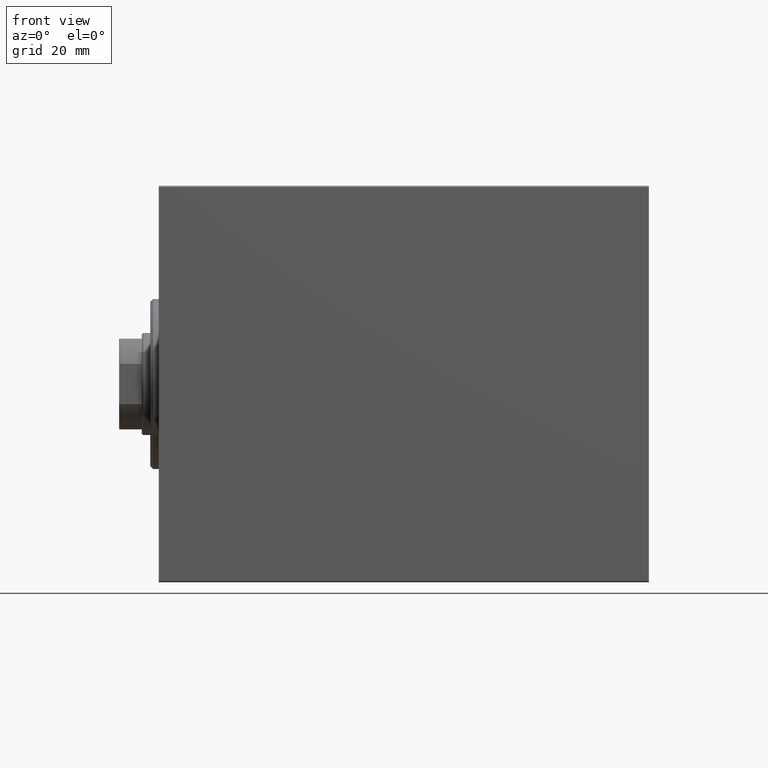
[diagram: clean part render]
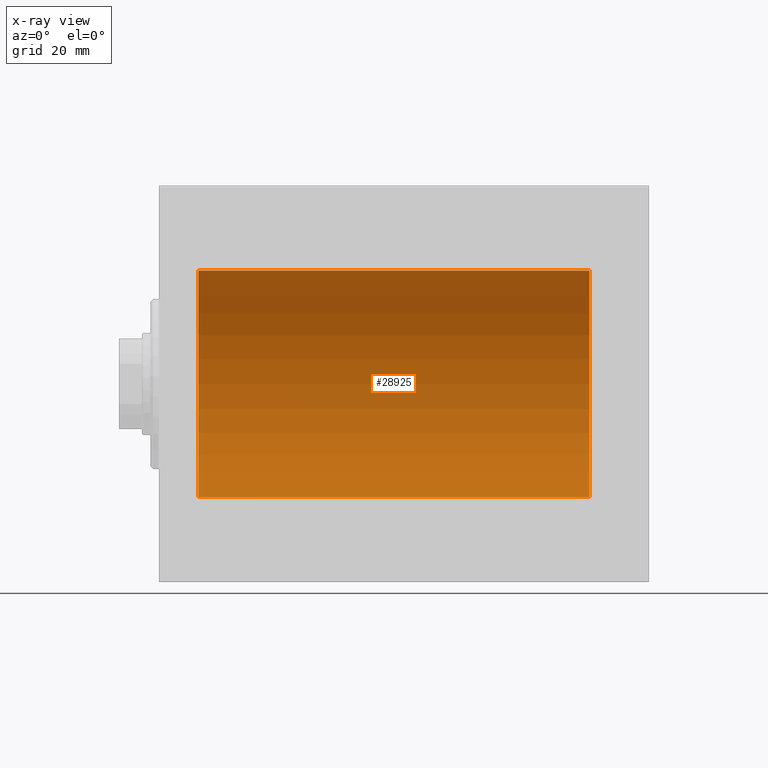
[diagram: x-ray — body ghosted, one internal face saturated and labeled with its STEP entity id]
A machine part, front view, then the same camera in x-ray: the body is ghosted and one INTERNAL B-rep face — a face not visible from any outside direction — is saturated and labeled: STEP entity #28925.
In plain terms, the highlighted cylindrical surface (partial cylindrical patch) has radius 40 mm, axis along (-1, -0, -0).
Its self-contained STEP definition (entity closure, byte-faithful):
#705 = CARTESIAN_POINT ( 'NONE',  ( 152.0000000000000000, 4.898587196589413026E-15, -40.00000000000000000 ) ) ;
#906 = CARTESIAN_POINT ( 'NONE',  ( 36.96538297760252334, 2.847223932150720671, -39.89860891179020541 ) ) ;
#1119 = CARTESIAN_POINT ( 'NONE',  ( 38.38516937969400544, 1.830069308885378776, -39.95844440547435283 ) ) ;
#1143 = CARTESIAN_POINT ( 'NONE',  ( 152.0000000000000000, 0.000000000000000000, 40.00000000000000000 ) ) ;
#1173 = CARTESIAN_POINT ( 'NONE',  ( 149.3851693796940481, 1.830069308885375223, -39.95844440547435994 ) ) ;
#1667 = DIRECTION ( 'NONE',  ( -1.000000000000000000, -0.000000000000000000, -0.000000000000000000 ) ) ;
#2678 = CARTESIAN_POINT ( 'NONE',  ( 32.99999999999999289, 8.398598542115384856E-15, -40.00000000000000000 ) ) ;
#2945 = VERTEX_POINT ( 'NONE', #12619 ) ;
#3200 = CARTESIAN_POINT ( 'NONE',  ( 148.8293181958946150, 2.385749008316984998, -39.92893738690724348 ) ) ;
#4601 = CARTESIAN_POINT ( 'NONE',  ( 152.0000000000000000, 4.898587196589413026E-15, -40.00000000000000000 ) ) ;
#4896 = CARTESIAN_POINT ( 'NONE',  ( 37.32869256112343237, 2.696891635062812487, -39.90905226542624717 ) ) ;
#4949 = CARTESIAN_POINT ( 'NONE',  ( 149.8469143336090212, 0.9663207501652061326, -39.98873943115997065 ) ) ;
#5401 = B_SPLINE_CURVE_WITH_KNOTS ( 'NONE', 3,
 ( #27669, #18062, #18277, #28096, #28535, #42130, #21629, #10944, #34798, #41252, #25196, #41474, #21410, #17845, #24327, #38793, #24537, #35451, #41689, #7806, #906, #4896, #35016, #37920, #20971, #11160, #1119, #14500, #14711, #28313, #38576, #8029, #29409, #28750 ),
 .UNSPECIFIED., .F., .F.,
 ( 4, 2, 2, 2, 2, 2, 2, 2, 2, 2, 2, 2, 2, 2, 2, 2, 4 ),
 ( 3.904922793221654316E-19, 0.0005864162728940700573, 0.001172832545788139681, 0.001759248818682208762, 0.002345665091576278061, 0.002932081364470347576, 0.003518497637364417091, 0.004104913910258486606, 0.004691330183152556121, 0.005277746456046625637, 0.005864162728940695152, 0.006450579001834764667, 0.007036995274728834182, 0.007623411547622903697, 0.008209827820516973212, 0.008796244093411044462, 0.009382660366305113978 ),
 .UNSPECIFIED. ) ;
#5502 = CARTESIAN_POINT ( 'NONE',  ( 152.0000000000000000, 0.000000000000000000, 40.00000000000000000 ) ) ;
#6546 = CARTESIAN_POINT ( 'NONE',  ( 147.9653829776025589, 2.847223932150704240, -39.89860891179019120 ) ) ;
#6772 = CARTESIAN_POINT ( 'NONE',  ( 145.6709769446328266, 2.696641662727008448, -39.90906847305313221 ) ) ;
#7208 = CARTESIAN_POINT ( 'NONE',  ( 144.7407048734210093, 1.983397227149396036, -39.95103655448513535 ) ) ;
#7806 = CARTESIAN_POINT ( 'NONE',  ( 36.77833358861975199, 2.903909245874810363, -39.89447063612582411 ) ) ;
#8029 = CARTESIAN_POINT ( 'NONE',  ( 38.98037412309665228, 0.3947312521144721309, -39.99851454786933402 ) ) ;
#8288 = EDGE_CURVE ( 'NONE', #37083, #2945, #11307, .T. ) ;
#9115 = AXIS2_PLACEMENT_3D ( 'NONE', #29331, #11956, #15721 ) ;
#9702 = EDGE_CURVE ( 'NONE', #17042, #16889, #35252, .T. ) ;
#10120 = CARTESIAN_POINT ( 'NONE',  ( 146.0319915523671455, 2.846249845702965242, -39.89867772821342129 ) ) ;
#10381 = CARTESIAN_POINT ( 'NONE',  ( 144.0000000000000284, 2.642090954555614270E-16, -40.00000000000000000 ) ) ;
#10559 = CARTESIAN_POINT ( 'NONE',  ( 144.0000000000000568, 0.1982918730505173199, -40.00000000000000000 ) ) ;
#10944 = CARTESIAN_POINT ( 'NONE',  ( 33.61400897252563880, 1.829066045078060476, -39.95849278436324425 ) ) ;
#11160 = CARTESIAN_POINT ( 'NONE',  ( 38.26098393863168923, 1.981711254113870613, -39.95112616827061913 ) ) ;
#11307 = LINE ( 'NONE', #4601, #19501 ) ;
#11956 = DIRECTION ( 'NONE',  ( -1.000000000000000000, -0.000000000000000000, -0.000000000000000000 ) ) ;
#12190 = AXIS2_PLACEMENT_3D ( 'NONE', #17616, #14269, #27870 ) ;
#12511 = EDGE_CURVE ( 'NONE', #35658, #16889, #5401, .T. ) ;
#12619 = CARTESIAN_POINT ( 'NONE',  ( 150.0000000000000284, 4.898587181765620889E-15, -40.00000000000000000 ) ) ;
#13079 = ORIENTED_EDGE ( 'NONE', *, *, #38422, .T. ) ;
#13234 = CARTESIAN_POINT ( 'NONE',  ( 144.3040879581895979, 1.330687358699877310, -39.97827280031937391 ) ) ;
#13462 = CARTESIAN_POINT ( 'NONE',  ( 146.6084575790990527, 2.980886287300809734, -39.88879301994634119 ) ) ;
#13504 = CARTESIAN_POINT ( 'NONE',  ( 152.0000000000000000, 4.898587196589413026E-15, -40.00000000000000000 ) ) ;
#14269 = DIRECTION ( 'NONE',  ( -1.000000000000000000, 0.000000000000000000, 0.000000000000000000 ) ) ;
#14500 = CARTESIAN_POINT ( 'NONE',  ( 38.60242138097658682, 1.505187563392005323, -39.97200074276641857 ) ) ;
#14711 = CARTESIAN_POINT ( 'NONE',  ( 38.69635323069529420, 1.329803094607265201, -39.97830262548650637 ) ) ;
#14767 = CARTESIAN_POINT ( 'NONE',  ( 150.0000000000000284, 4.898587181765620889E-15, -40.00000000000000000 ) ) ;
#15721 = DIRECTION ( 'NONE',  ( 0.000000000000000000, 0.000000000000000000, 1.000000000000000000 ) ) ;
#16570 = CARTESIAN_POINT ( 'NONE',  ( 144.0194663043102423, 0.3932559001416424116, -39.99852666141217128 ) ) ;
#16793 = CARTESIAN_POINT ( 'NONE',  ( 148.9808298560388948, 2.261756164323876384, -39.93625070860935722 ) ) ;
#16889 = VERTEX_POINT ( 'NONE', #31809 ) ;
#17042 = VERTEX_POINT ( 'NONE', #10381 ) ;
#17465 = CARTESIAN_POINT ( 'NONE',  ( 144.3962588482174851, 1.502986292339231644, -39.97208601512195969 ) ) ;
#17573 = EDGE_LOOP ( 'NONE', ( #37561, #27748, #13079, #32862, #17945, #23446, #40641, #40338 ) ) ;
#17616 = CARTESIAN_POINT ( 'NONE',  ( 152.0000000000000000, 0.000000000000000000, 0.000000000000000000 ) ) ;
#17677 = CARTESIAN_POINT ( 'NONE',  ( 149.9036449538775173, 0.7792872749133293864, -39.99287049138470707 ) ) ;
#17845 = CARTESIAN_POINT ( 'NONE',  ( 35.03199155236713835, 2.846249845702978565, -39.89867772821342129 ) ) ;
#17945 = ORIENTED_EDGE ( 'NONE', *, *, #20724, .F. ) ;
#18062 = CARTESIAN_POINT ( 'NONE',  ( 32.99999999999998579, 0.1982918730505277005, -39.99999999999999289 ) ) ;
#18277 = CARTESIAN_POINT ( 'NONE',  ( 33.01946630431021390, 0.3932559001416509048, -39.99852666141217838 ) ) ;
#18614 = CARTESIAN_POINT ( 'NONE',  ( 152.0000000000000000, 4.898587196589413026E-15, -40.00000000000000000 ) ) ;
#19501 = VECTOR ( 'NONE', #28459, 1000.000000000000000 ) ;
#20143 = CARTESIAN_POINT ( 'NONE',  ( 145.0174478800970519, 2.260036752248971492, -39.93634209860680073 ) ) ;
#20294 = VERTEX_POINT ( 'NONE', #5502 ) ;
#20360 = CARTESIAN_POINT ( 'NONE',  ( 146.8031755022305731, 2.999929504480790321, -39.88734665245503663 ) ) ;
#20590 = CARTESIAN_POINT ( 'NONE',  ( 144.0957262881456984, 0.7768046863726094653, -39.99291636985139320 ) ) ;
#20669 = AXIS2_PLACEMENT_3D ( 'NONE', #27131, #33377, #26908 ) ;
#20724 = EDGE_CURVE ( 'NONE', #35658, #43402, #35350, .T. ) ;
#20971 = CARTESIAN_POINT ( 'NONE',  ( 37.98082985603886641, 2.261756164323886154, -39.93625070860936432 ) ) ;
#21255 = VECTOR ( 'NONE', #1667, 1000.000000000000000 ) ;
#21410 = CARTESIAN_POINT ( 'NONE',  ( 34.67097694463277691, 2.696641662727018662, -39.90906847305313221 ) ) ;
#21428 = VECTOR ( 'NONE', #28337, 1000.000000000000000 ) ;
#21430 = DIRECTION ( 'NONE',  ( -1.000000000000000000, -0.000000000000000000, -0.000000000000000000 ) ) ;
#21629 = CARTESIAN_POINT ( 'NONE',  ( 33.39625884821743540, 1.502986292339240970, -39.97208601512195258 ) ) ;
#23446 = ORIENTED_EDGE ( 'NONE', *, *, #12511, .T. ) ;
#23722 = CARTESIAN_POINT ( 'NONE',  ( 148.5042935686005592, 2.602941461497646713, -39.91536715259250911 ) ) ;
#24327 = CARTESIAN_POINT ( 'NONE',  ( 35.22113368114476373, 2.903851887155405986, -39.89447500423337800 ) ) ;
#24363 = B_SPLINE_CURVE_WITH_KNOTS ( 'NONE', 3,
 ( #41088, #10559, #16570, #20590, #30184, #13234, #17465, #34193, #7208, #20143, #31069, #26620, #6772, #10120, #26839, #13462, #20360, #40209, #37094, #40430, #6546, #33749, #23722, #3200, #16793, #37314, #1173, #41304, #28589, #4949, #17677, #31721, #31937, #14767 ),
 .UNSPECIFIED., .F., .F.,
 ( 4, 2, 2, 2, 2, 2, 2, 2, 2, 2, 2, 2, 2, 2, 2, 2, 4 ),
 ( 2.203917256251973750E-18, 0.0005864162728940708162, 0.001172832545788139464, 0.001759248818682208112, 0.002345665091576277193, 0.002932081364470346275, 0.003518497637364414923, 0.004104913910258484004, 0.004691330183152552652, 0.005277746456046621300, 0.005864162728940689948, 0.006450579001834758595, 0.007036995274728826376, 0.007623411547622895024, 0.008209827820516962804, 0.008796244093411032319, 0.009382660366305101834 ),
 .UNSPECIFIED. ) ;
#24537 = CARTESIAN_POINT ( 'NONE',  ( 35.80317550223061573, 2.999929504480807196, -39.88734665245503663 ) ) ;
#24637 = CARTESIAN_POINT ( 'NONE',  ( 13.99999999999998401, 4.898587196589413026E-15, -40.00000000000000000 ) ) ;
#25196 = CARTESIAN_POINT ( 'NONE',  ( 34.16846266449255154, 2.384195078505205512, -39.92903310064217948 ) ) ;
#25922 = VECTOR ( 'NONE', #21430, 1000.000000000000000 ) ;
#26433 = FACE_OUTER_BOUND ( 'NONE', #17573, .T. ) ;
#26620 = CARTESIAN_POINT ( 'NONE',  ( 145.4964356991661134, 2.603499486649421879, -39.91533365697404889 ) ) ;
#26839 = CARTESIAN_POINT ( 'NONE',  ( 146.2211336811448348, 2.903851887155393108, -39.89447500423338511 ) ) ;
#26908 = DIRECTION ( 'NONE',  ( 0.000000000000000000, 0.000000000000000000, 1.000000000000000000 ) ) ;
#27131 = CARTESIAN_POINT ( 'NONE',  ( 13.99999999999998401, 0.000000000000000000, 0.000000000000000000 ) ) ;
#27669 = CARTESIAN_POINT ( 'NONE',  ( 32.99999999999999289, 8.398598542115384856E-15, -40.00000000000000000 ) ) ;
#27748 = ORIENTED_EDGE ( 'NONE', *, *, #43060, .F. ) ;
#27870 = DIRECTION ( 'NONE',  ( 0.000000000000000000, 0.000000000000000000, 1.000000000000000000 ) ) ;
#28096 = CARTESIAN_POINT ( 'NONE',  ( 33.09572628814569129, 0.7768046863726183471, -39.99291636985139320 ) ) ;
#28313 = CARTESIAN_POINT ( 'NONE',  ( 38.84691433360895019, 0.9663207501652123499, -39.98873943115997776 ) ) ;
#28337 = DIRECTION ( 'NONE',  ( -1.000000000000000000, -0.000000000000000000, -0.000000000000000000 ) ) ;
#28459 = DIRECTION ( 'NONE',  ( -1.000000000000000000, -0.000000000000000000, -0.000000000000000000 ) ) ;
#28535 = CARTESIAN_POINT ( 'NONE',  ( 33.15345075433262423, 0.9673820216299632291, -39.98871336974453072 ) ) ;
#28589 = CARTESIAN_POINT ( 'NONE',  ( 149.6963532306953368, 1.329803094607256986, -39.97830262548651348 ) ) ;
#28750 = CARTESIAN_POINT ( 'NONE',  ( 39.00000000000000000, 4.898587181754971267E-15, -40.00000000000000000 ) ) ;
#28925 = ADVANCED_FACE ( 'NONE', ( #26433 ), #29780, .F. ) ;
#29331 = CARTESIAN_POINT ( 'NONE',  ( 152.0000000000000000, 0.000000000000000000, 0.000000000000000000 ) ) ;
#29409 = CARTESIAN_POINT ( 'NONE',  ( 39.00000000000000000, 0.1958295874890065291, -40.00000000000000711 ) ) ;
#29780 = CYLINDRICAL_SURFACE ( 'NONE', #9115, 40.00000000000000000 ) ;
#30184 = CARTESIAN_POINT ( 'NONE',  ( 144.1534507543327095, 0.9673820216299533481, -39.98871336974455204 ) ) ;
#31069 = CARTESIAN_POINT ( 'NONE',  ( 145.1684626644925515, 2.384195078505191745, -39.92903310064217237 ) ) ;
#31721 = CARTESIAN_POINT ( 'NONE',  ( 149.9803741230966807, 0.3947312521144693553, -39.99851454786935534 ) ) ;
#31809 = CARTESIAN_POINT ( 'NONE',  ( 39.00000000000000000, 4.898587181754971267E-15, -40.00000000000000000 ) ) ;
#31937 = CARTESIAN_POINT ( 'NONE',  ( 150.0000000000000284, 0.1958295874890079447, -39.99999999999999289 ) ) ;
#32862 = ORIENTED_EDGE ( 'NONE', *, *, #35216, .T. ) ;
#33377 = DIRECTION ( 'NONE',  ( -1.000000000000000000, 0.000000000000000000, 0.000000000000000000 ) ) ;
#33555 = CIRCLE ( 'NONE', #12190, 40.00000000000000000 ) ;
#33591 = EDGE_CURVE ( 'NONE', #17042, #2945, #24363, .T. ) ;
#33749 = CARTESIAN_POINT ( 'NONE',  ( 148.3286925611234324, 2.696891635062796500, -39.90905226542625428 ) ) ;
#34193 = CARTESIAN_POINT ( 'NONE',  ( 144.6140089725256814, 1.829066045078048930, -39.95849278436325136 ) ) ;
#34798 = CARTESIAN_POINT ( 'NONE',  ( 33.74070487342093827, 1.983397227149410025, -39.95103655448513535 ) ) ;
#35016 = CARTESIAN_POINT ( 'NONE',  ( 37.50429356860058761, 2.602941461497656039, -39.91536715259250911 ) ) ;
#35216 = EDGE_CURVE ( 'NONE', #39130, #43402, #39880, .T. ) ;
#35252 = LINE ( 'NONE', #705, #25922 ) ;
#35350 = LINE ( 'NONE', #18614, #21255 ) ;
#35451 = CARTESIAN_POINT ( 'NONE',  ( 36.19466961372759073, 3.000070108558761994, -39.88733607736547526 ) ) ;
#35658 = VERTEX_POINT ( 'NONE', #2678 ) ;
#37083 = VERTEX_POINT ( 'NONE', #13504 ) ;
#37094 = CARTESIAN_POINT ( 'NONE',  ( 147.3935020639295033, 2.980544951704983792, -39.88881833341081062 ) ) ;
#37314 = CARTESIAN_POINT ( 'NONE',  ( 149.2609839386317105, 1.981711254113862841, -39.95112616827061203 ) ) ;
#37561 = ORIENTED_EDGE ( 'NONE', *, *, #8288, .F. ) ;
#37920 = CARTESIAN_POINT ( 'NONE',  ( 37.82931819589460076, 2.385749008316991215, -39.92893738690724348 ) ) ;
#38422 = EDGE_CURVE ( 'NONE', #20294, #39130, #41932, .T. ) ;
#38576 = CARTESIAN_POINT ( 'NONE',  ( 38.90364495387748889, 0.7792872749133341603, -39.99287049138470707 ) ) ;
#38624 = CARTESIAN_POINT ( 'NONE',  ( 13.99999999999998401, 0.000000000000000000, 40.00000000000000000 ) ) ;
#38793 = CARTESIAN_POINT ( 'NONE',  ( 35.60845757909898879, 2.980886287300823945, -39.88879301994635540 ) ) ;
#39130 = VERTEX_POINT ( 'NONE', #38624 ) ;
#39880 = CIRCLE ( 'NONE', #20669, 40.00000000000000000 ) ;
#40209 = CARTESIAN_POINT ( 'NONE',  ( 147.1946696137275978, 3.000070108558746007, -39.88733607736548237 ) ) ;
#40338 = ORIENTED_EDGE ( 'NONE', *, *, #33591, .T. ) ;
#40430 = CARTESIAN_POINT ( 'NONE',  ( 147.7783335886197733, 2.903909245874797485, -39.89447063612583122 ) ) ;
#40641 = ORIENTED_EDGE ( 'NONE', *, *, #9702, .F. ) ;
#41088 = CARTESIAN_POINT ( 'NONE',  ( 144.0000000000000284, 2.642090954555614270E-16, -40.00000000000000000 ) ) ;
#41252 = CARTESIAN_POINT ( 'NONE',  ( 34.01744788009703058, 2.260036752248987479, -39.93634209860680073 ) ) ;
#41304 = CARTESIAN_POINT ( 'NONE',  ( 149.6024213809766081, 1.505187563392005323, -39.97200074276641146 ) ) ;
#41474 = CARTESIAN_POINT ( 'NONE',  ( 34.49643569916604946, 2.603499486649436090, -39.91533365697402758 ) ) ;
#41689 = CARTESIAN_POINT ( 'NONE',  ( 36.39350206392951037, 2.980544951704998002, -39.88881833341080352 ) ) ;
#41932 = LINE ( 'NONE', #1143, #21428 ) ;
#42130 = CARTESIAN_POINT ( 'NONE',  ( 33.30408795818954104, 1.330687358699887968, -39.97827280031936681 ) ) ;
#43060 = EDGE_CURVE ( 'NONE', #20294, #37083, #33555, .T. ) ;
#43402 = VERTEX_POINT ( 'NONE', #24637 ) ;